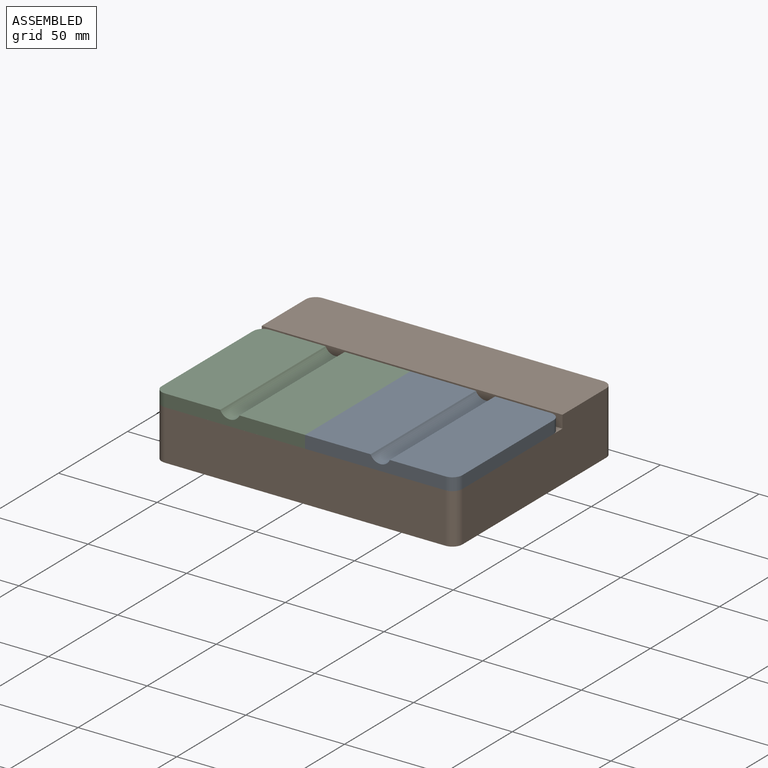
[diagram: assembled view]
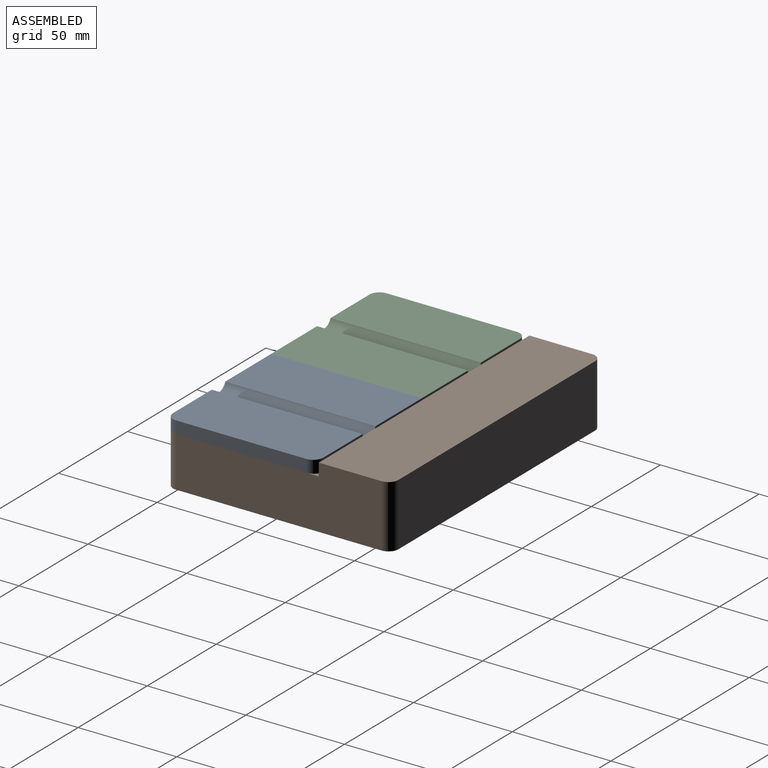
[diagram: assembled view, second angle]
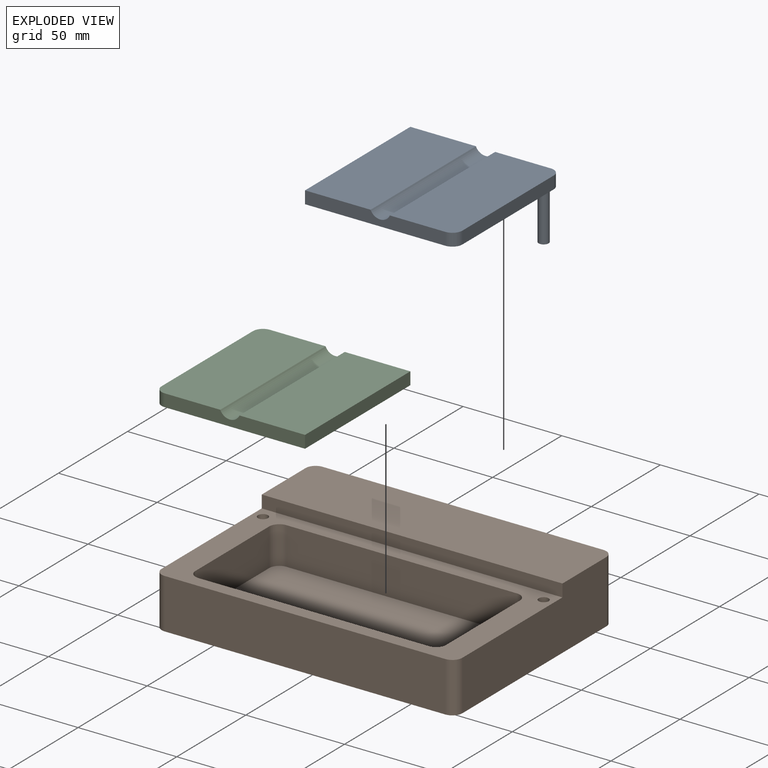
[diagram: exploded view]
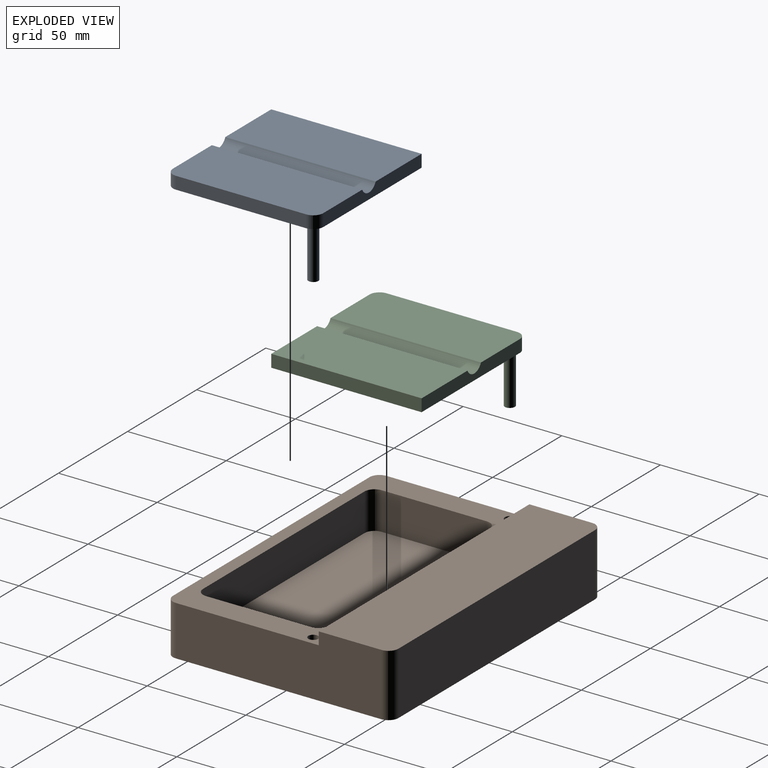
[diagram: exploded view, second angle]
ASSEMBLY  parts=3 mates=2
PART A: 12 faces, bbox 76.2x76.2x31.8 mm
  f0: plane 76.2x33.22mm, normal (0,0,1), area 2520.7mm2, adj f1,f2,f4,f7,f8,f9
  f1: plane 66.04x6.35mm, normal (1,0,0), area 419.4mm2, adj f0,f6,f7,f8
  f2: plane 71.12x6.35mm, normal (0,1,0), area 429.3mm2, adj f0,f3,f5,f6,f7,f9
  f3: plane 76.2x6.35mm, normal (-1,0,0), area 483.9mm2, adj f2,f4,f5,f6
  f4: plane 71.12x6.35mm, normal (0,-1,0), area 429.3mm2, adj f0,f3,f5,f6,f8,f9
  f5: plane 76.2x33.23mm, normal (0,0,1), area 2532.1mm2, adj f2,f3,f4,f9
  f6: plane 76.2x76.2mm, normal (0,0,-1), area 5775.1mm2, adj f1,f2,f3,f4,f7,f8,f10
  f7: cylinder r=5.08mm len=6.35mm, axis (0,0,-1), area 50.7mm2, adj f0,f1,f2,f6
  f8: cylinder r=5.08mm len=6.35mm, axis (0,0,1), area 50.7mm2, adj f0,f1,f4,f6
  f9: cylinder r=5.33mm len=76.2mm, axis (0,-1,0), area 937.6mm2, adj f0,f2,f4,f5
  f10: cylinder r=2.54mm len=25.4mm, axis (0,0,1), area 405.4mm2, adj f6,f11
  f11: plane 5.08x5.08mm, normal (0,0,-1), area 20.3mm2, adj f10
PART B: 23 faces, bbox 152.4x114.3x31.8 mm
  f0: plane 152.4x77.47mm, normal (0,0,1), area 3712.5mm2, adj f1,f3,f4,f5,f6,f10,f11,f12
  f1: plane 104.14x31.75mm, normal (1,0,0), area 2846.8mm2, adj f0,f7,f8,f11,f12,f13
  f2: plane 142.24x31.75mm, normal (0,1,0), area 4516.1mm2, adj f7,f8,f9,f13
  f3: plane 104.14x31.75mm, normal (-1,0,0), area 2846.8mm2, adj f0,f7,f9,f10,f12,f13
  f4: cylinder r=2.54mm len=25.4mm, axis (0,0,-1), area 405.4mm2, adj f0,f7
  f5: cylinder r=2.54mm len=25.4mm, axis (0,0,-1), area 405.4mm2, adj f0,f7
  f6: plane 142.24x25.4mm, normal (0,-1,0), area 3612.9mm2, adj f0,f7,f10,f11
  f7: plane 152.4x114.3mm, normal (0,0,-1), area 17356.6mm2, adj f1,f2,f3,f4,f5,f6,f8,f9
  f8: cylinder r=5.08mm len=31.75mm, axis (0,0,-1), area 253.4mm2, adj f1,f2,f7,f13
  f9: cylinder r=5.08mm len=31.75mm, axis (0,0,1), area 253.4mm2, adj f2,f3,f7,f13
  f10: cylinder r=5.08mm len=25.4mm, axis (0,0,-1), area 202.7mm2, adj f0,f3,f6,f7
  f11: cylinder r=5.08mm len=25.4mm, axis (0,0,1), area 202.7mm2, adj f0,f1,f6,f7
  f12: plane 152.4x6.35mm, normal (0,-1,0), area 967.7mm2, adj f0,f1,f3,f13
  f13: plane 152.4x36.83mm, normal (0,0,1), area 5601.8mm2, adj f1,f2,f3,f8,f9,f12
  f14: plane 116.84x19.05mm, normal (0,-1,0), area 2225.8mm2, adj f0,f18,f19,f22
  f15: plane 53.34x19.05mm, normal (1,0,0), area 1016.1mm2, adj f0,f18,f19,f20
  f16: plane 116.84x19.05mm, normal (0,1,0), area 2225.8mm2, adj f0,f18,f20,f21
  f17: plane 53.34x19.05mm, normal (-1,0,0), area 1016.1mm2, adj f0,f18,f21,f22
  f18: plane 127x63.5mm, normal (0,0,1), area 8042.3mm2, adj f14,f15,f16,f17,f19,f20,f21,f22
  f19: cylinder r=5.08mm len=19.05mm, axis (0,0,1), area 152mm2, adj f0,f14,f15,f18
  f20: cylinder r=5.08mm len=19.05mm, axis (0,0,-1), area 152mm2, adj f0,f15,f16,f18
  f21: cylinder r=5.08mm len=19.05mm, axis (0,0,1), area 152mm2, adj f0,f16,f17,f18
  f22: cylinder r=5.08mm len=19.05mm, axis (0,0,-1), area 152mm2, adj f0,f14,f17,f18
PART C: 12 faces, bbox 76.2x76.2x31.8 mm
  f0: plane 76.2x33.22mm, normal (0,0,1), area 2531.7mm2, adj f1,f2,f4,f9
  f1: plane 76.2x6.35mm, normal (1,0,0), area 483.9mm2, adj f0,f2,f4,f6
  f2: plane 71.12x6.35mm, normal (0,1,0), area 429.3mm2, adj f0,f1,f5,f6,f7,f9
  f3: plane 66.04x6.35mm, normal (-1,0,0), area 419.4mm2, adj f5,f6,f7,f8
  f4: plane 71.12x6.35mm, normal (0,-1,0), area 429.3mm2, adj f0,f1,f5,f6,f8,f9
  f5: plane 76.2x33.23mm, normal (0,0,1), area 2521.1mm2, adj f2,f3,f4,f7,f8,f9
  f6: plane 76.2x76.2mm, normal (0,0,-1), area 5775.1mm2, adj f1,f2,f3,f4,f7,f8,f10
  f7: cylinder r=5.08mm len=6.35mm, axis (0,0,1), area 50.7mm2, adj f2,f3,f5,f6
  f8: cylinder r=5.08mm len=6.35mm, axis (0,0,-1), area 50.7mm2, adj f3,f4,f5,f6
  f9: cylinder r=5.33mm len=76.2mm, axis (0,-1,0), area 937.6mm2, adj f0,f2,f4,f5
  f10: cylinder r=2.54mm len=25.4mm, axis (0,0,1), area 405.4mm2, adj f6,f11
  f11: plane 5.08x5.08mm, normal (0,0,-1), area 20.3mm2, adj f10
PLACE A t=(38.1,-19.05,15.87)mm
PLACE B at identity fixed
PLACE C t=(-38.1,-19.05,15.87)mm
MATE revolute C.f7 <-> B.f5  axis (0,0,-1) through (-71.12,13.97,-12.7)mm
MATE revolute A.f7 <-> B.f4  axis (0,0,-1) through (71.12,13.97,-12.7)mm
